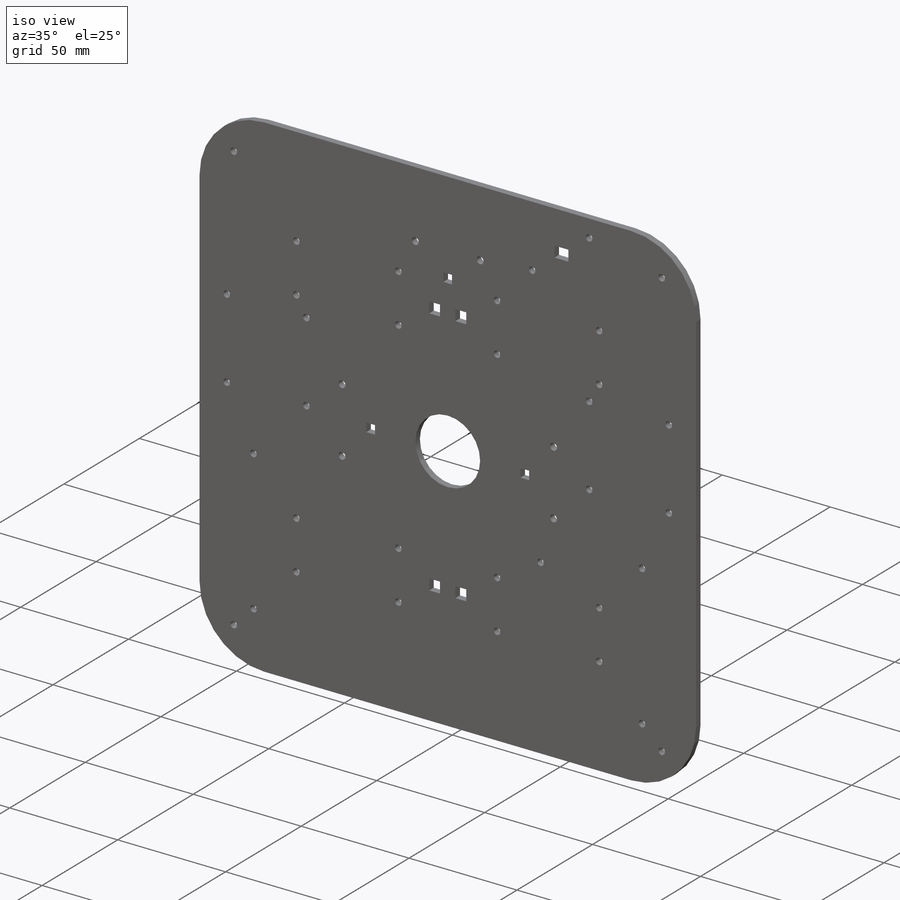
[diagram: iso view]
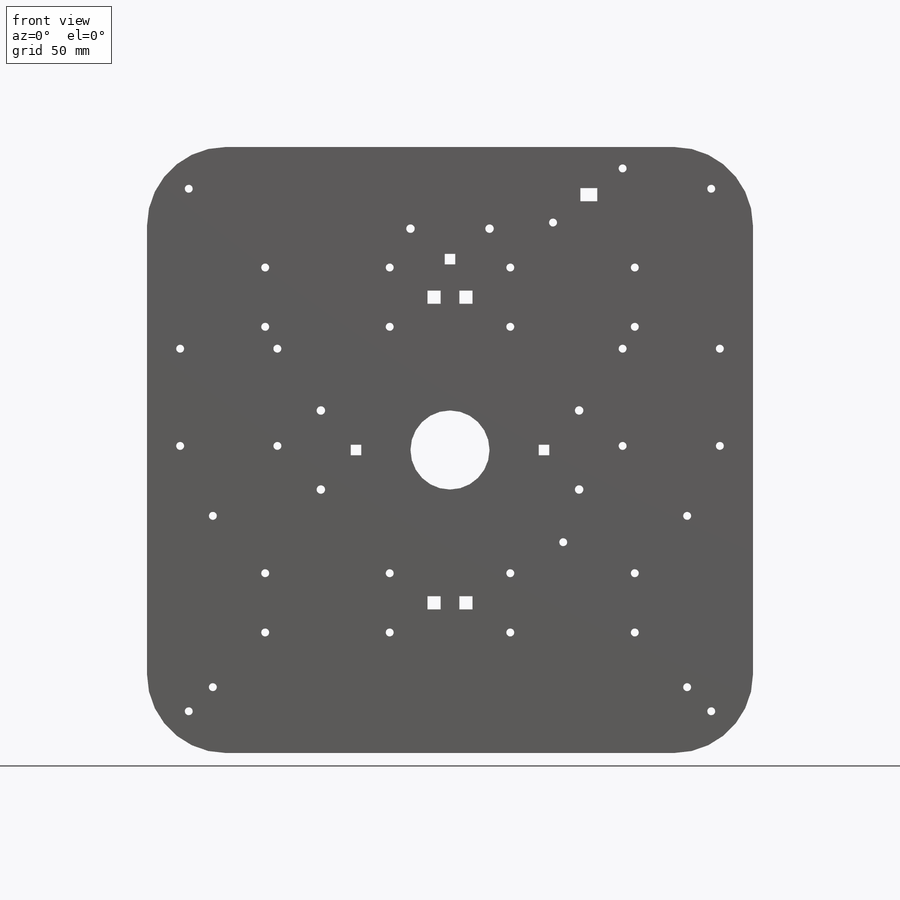
[diagram: front view]
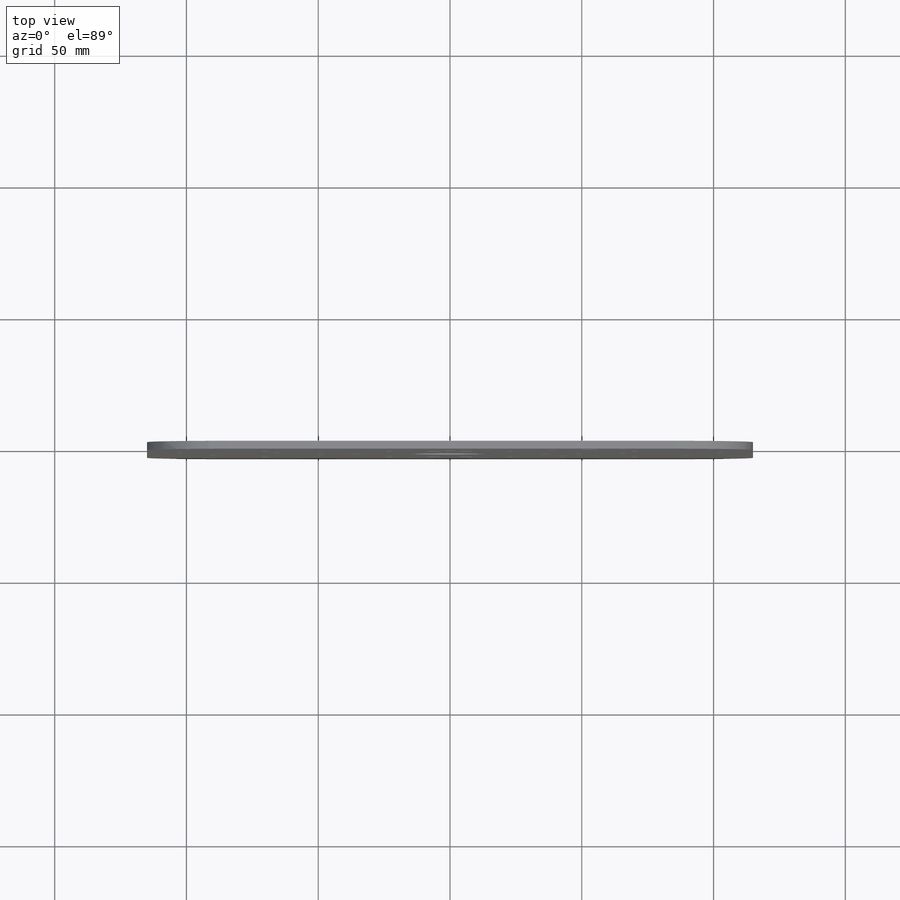
[diagram: top view]
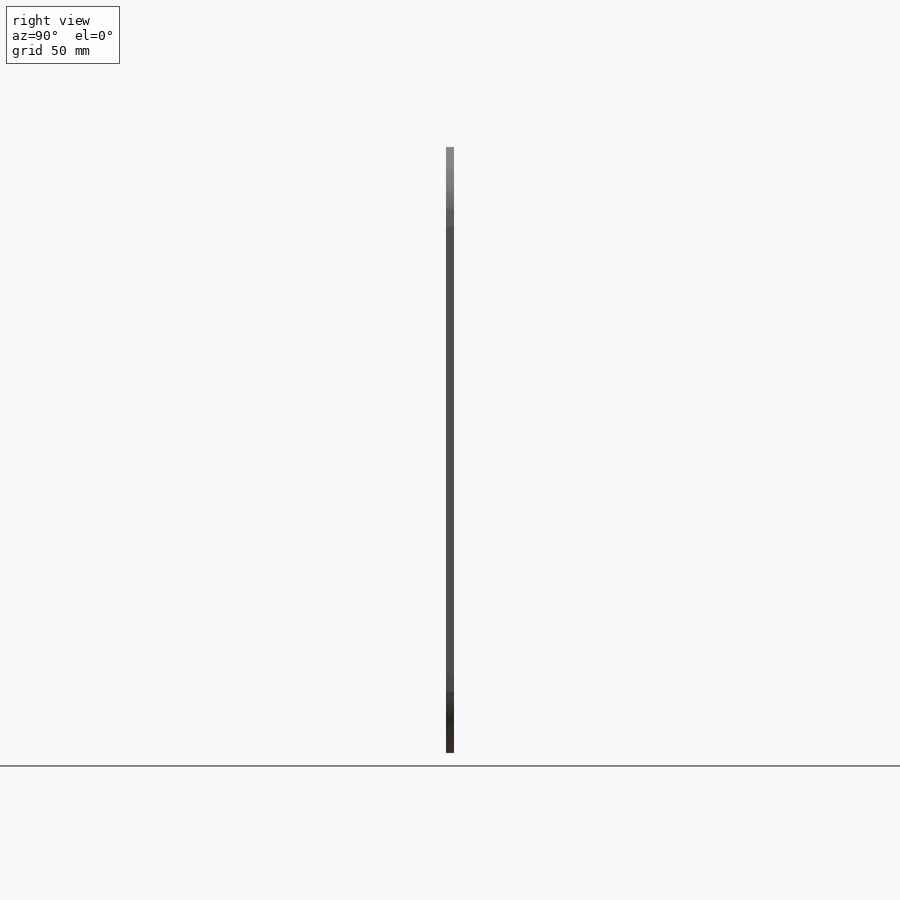
[diagram: right view]
SOLIDWORKS PART (.sldprt)
format: sldprt  version: not decoded by parser v0  size: 317,440 bytes
history: native  units: mm
features: sketch x4, fillet x4, plane x3, material x1, extrude x1, cut_extrude x1 (+10 scaffold rows collapsed)
feature tree (24):
  scaffold x10  (default folders/planes/origin — collapsed)
  material  "Material <sin especificar>"
  plane  "Alzado"
  plane  "Planta"
  plane  "Vista lateral"
  sketch  "Croquis1"  dims[D1=230.0mm D2=230.0mm]
  extrude  "Saliente-Extruir2"  Depth=3mm
  fillet  "Redondeo1"  Radius=30mm
  fillet  "Redondeo2"  Radius=30mm
  fillet  "Redondeo3"  Radius=30mm
  fillet  "Redondeo4"  Radius=30mm
  sketch  "Croquis2"  dims[c1.D3=~5.022585mm c1.D4=~4.186412mm c1.D5=~1.548717mm c1.D6=~1.089602mm c1.D2=~15.298708mm c1.D11=~3.03532mm c1.D14=3.0mm c1.D15=3.0mm c1.D16=3.0mm c1.D17=3.0mm c1.D18=3.0mm c1.D19=3.0mm c1.D20=3.0mm c1.D21=3.0mm c1.D22=3.0mm c1.D23=3.0mm c1.D24=3.0mm c1.D25=3.0mm c1.D26=3.0mm c1.D27=3.0mm c1.D28=3.0mm c1.D29=3.0mm c1.D30=30.0mm c1.D31=~3.227159mm c1.D12=30.0mm c2.D11=~2.465927mm c2.D13=~1.477448mm c2.D14=33.6mm c2.D4=~2.012488mm c2.D2=3.0mm c3.D4=~1.74506mm c3.D14=~1.146283mm c4.D4=~1.407921mm c4.D1=46.75mm c4.D2=22.88mm c4.D3=47.25mm c5.D4=22.5mm c5.D5=47.25mm c5.D6=~6.054531mm c5.D7=11.25mm c5.D8=5.0mm c5.D9=5.0mm c6.D6=~11.250441mm c6.D7=~6.054531mm c6.D2=10.0mm c6.D8=10.0mm c6.D9=10.0mm c6.D10=10.0mm c6.D11=60.0mm c6.D12=60.0mm c6.D13=60.0mm c6.D31=30.0mm c6.D32=30.0mm c6.D33=32.3mm c7.D13=~7.071068mm c7.D3=60.0mm c7.D4=60.0mm c7.D5=60.0mm c7.D6=40.0mm c7.D7=15.0mm c7.D11=15.0mm c8.D7=12.0mm c8.D11=42.0mm c8.D13=30.0mm c8.D14=6.0mm c8.D2=36.9mm c8.D3=36.9mm c9.D2=25.0mm c9.D3=25.0mm c10.D2=25.0mm c10.D3=25.0mm c11.D2=4.0mm c11.D3=4.0mm c11.D4=4.0mm c11.D5=4.0mm c11.D6=31.1mm c11.D8=24.2mm c11.D9=1.0mm c11.D10=1.5mm c11.D14=5.0mm c11.D15=~6.42562mm c11.D1=13.0mm c12.D2=13.0mm c12.D1=10.0mm c13.D2=10.0mm c13.D3=~30.016701mm]
  sketch  "Croquis3"
  sketch  "Croquis4"
  cut_extrude  "Cortar-Extruir2"  Depth=3mm
decode coverage: 8 of 10 modeling features carry decoded parameters
note: ~ marks probable driven/reference dimensions
note: suppression state not decoded; provenance and decode notes live in map.json
